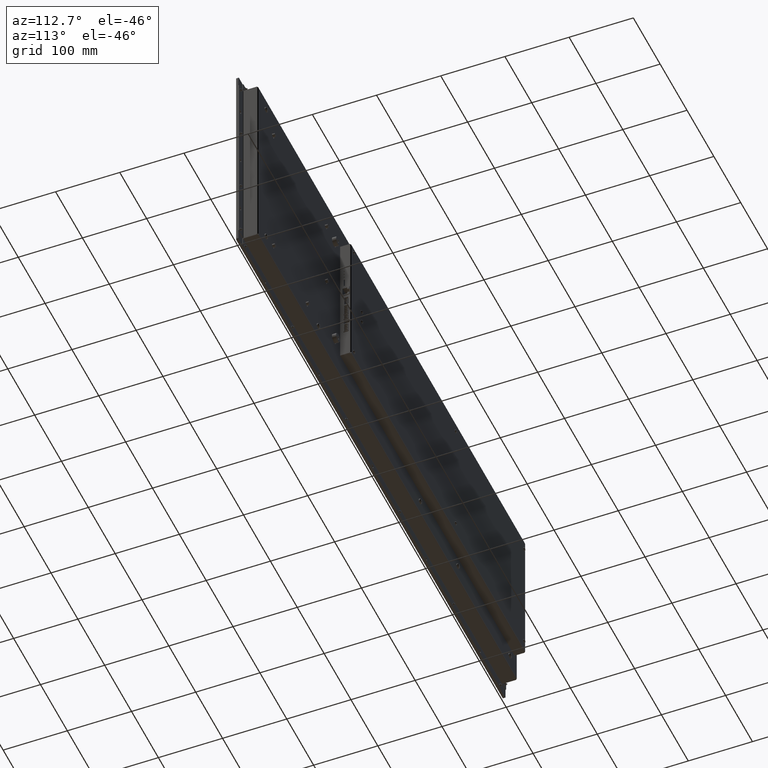
[diagram: clean part render]
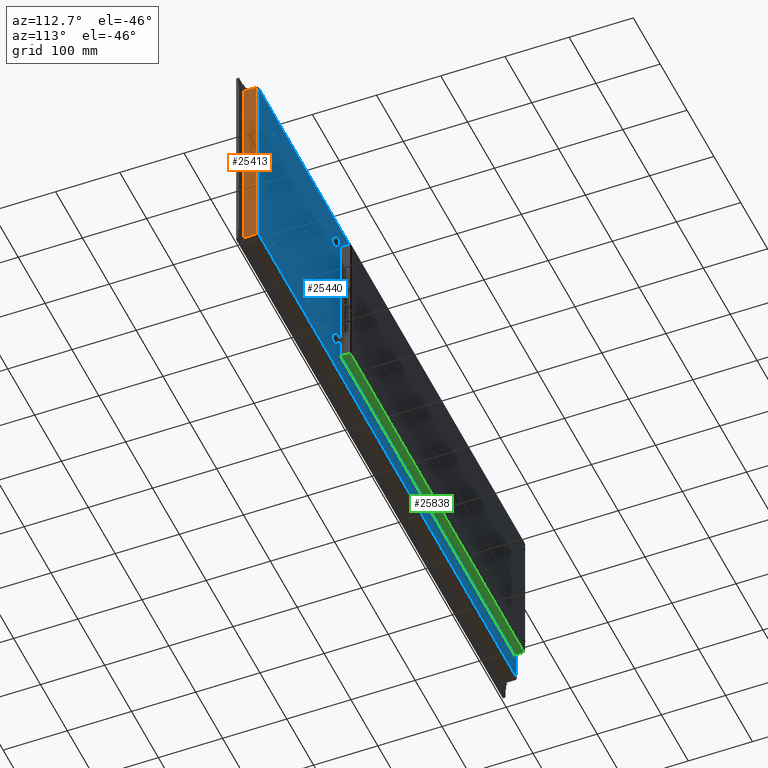
[diagram: same view with three faces highlighted in distinct colors, each labeled with its STEP entity id]
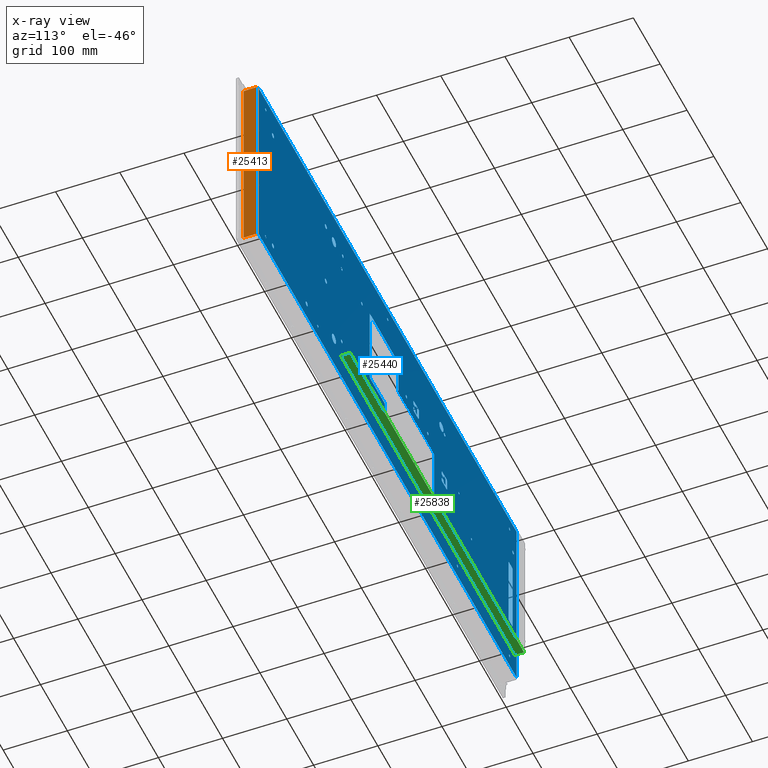
[diagram: x-ray of the same camera — body ghosted, the three highlighted faces saturated]
A machine part, auxiliary view with three faces highlighted in distinct colors.
The next image is the same camera in x-ray (body ghosted, the three faces saturated) — at least one of them is partly hidden behind the body in this view.
Their STEP definitions:

[orange] entity #25413 — the highlighted planar face has unit normal (1, -0, 0).
#3677=FACE_OUTER_BOUND('',#5172,.T.);
#5172=EDGE_LOOP('',(#18196,#18197,#18198,#18199));
#7043=LINE('',#37731,#9256);
#7050=LINE('',#37754,#9263);
#7053=LINE('',#37760,#9266);
#7054=LINE('',#37761,#9267);
#9256=VECTOR('',#30619,10.);
#9263=VECTOR('',#30648,10.);
#9266=VECTOR('',#30653,10.);
#9267=VECTOR('',#30654,10.);
#11576=VERTEX_POINT('',#37722);
#11577=VERTEX_POINT('',#37726);
#11582=VERTEX_POINT('',#37753);
#11584=VERTEX_POINT('',#37759);
#14152=EDGE_CURVE('',#11576,#11577,#7043,.T.);
#14163=EDGE_CURVE('',#11576,#11582,#7050,.T.);
#14166=EDGE_CURVE('',#11577,#11584,#7053,.T.);
#14167=EDGE_CURVE('',#11584,#11582,#7054,.T.);
#18196=ORIENTED_EDGE('',*,*,#14152,.T.);
#18197=ORIENTED_EDGE('',*,*,#14166,.T.);
#18198=ORIENTED_EDGE('',*,*,#14167,.T.);
#18199=ORIENTED_EDGE('',*,*,#14163,.F.);
#24574=PLANE('',#27460);
#25413=ADVANCED_FACE('',(#3677),#24574,.T.);
#27460=AXIS2_PLACEMENT_3D('',#37758,#30651,#30652);
#30619=DIRECTION('',(3.99312685147812E-18,-1.,-1.77330454830396E-32));
#30648=DIRECTION('',(3.15796771448933E-15,8.68441121484567E-15,1.));
#30651=DIRECTION('center_axis',(-1.,-3.99312685147812E-18,4.1851264362802E-15));
#30652=DIRECTION('ref_axis',(4.1851264362802E-15,0.,1.));
#30653=DIRECTION('',(3.15796771448933E-15,-8.68441121484567E-15,1.));
#30654=DIRECTION('',(-3.99312685147812E-18,1.,2.15241630805105E-32));
#37722=CARTESIAN_POINT('',(-482.52,151.65,-22.4999999999999));
#37726=CARTESIAN_POINT('',(-482.52,-151.65,-22.4999999999999));
#37731=CARTESIAN_POINT('',(-482.52,-75.8250000000001,-22.4999999999999));
#37753=CARTESIAN_POINT('',(-482.52,151.65,-1.99999999999992));
#37754=CARTESIAN_POINT('',(-482.52,151.65,-1.99999999999995));
#37758=CARTESIAN_POINT('Origin',(-482.52,-1.17683640610267E-13,-12.1190266447076));
#37759=CARTESIAN_POINT('',(-482.52,-151.65,-1.99999999999992));
#37760=CARTESIAN_POINT('',(-482.52,-151.65,-1.99999999999995));
#37761=CARTESIAN_POINT('',(-482.52,-1.29897211956662E-13,-1.99999999999996));

[blue] entity #25440 — the highlighted planar face has unit normal (0, 1, -0).
#2062=FACE_BOUND('',#5200,.T.);
#2063=FACE_BOUND('',#5201,.T.);
#2064=FACE_BOUND('',#5202,.T.);
#2065=FACE_BOUND('',#5203,.T.);
#2066=FACE_BOUND('',#5204,.T.);
#2067=FACE_BOUND('',#5205,.T.);
#2068=FACE_BOUND('',#5206,.T.);
#2069=FACE_BOUND('',#5207,.T.);
#2070=FACE_BOUND('',#5208,.T.);
#2071=FACE_BOUND('',#5209,.T.);
#2072=FACE_BOUND('',#5210,.T.);
#2073=FACE_BOUND('',#5211,.T.);
#2074=FACE_BOUND('',#5212,.T.);
#2075=FACE_BOUND('',#5213,.T.);
#2076=FACE_BOUND('',#5214,.T.);
#2077=FACE_BOUND('',#5215,.T.);
#2078=FACE_BOUND('',#5216,.T.);
#2079=FACE_BOUND('',#5217,.T.);
#2080=FACE_BOUND('',#5218,.T.);
#2081=FACE_BOUND('',#5219,.T.);
#2082=FACE_BOUND('',#5220,.T.);
#2083=FACE_BOUND('',#5221,.T.);
#2084=FACE_BOUND('',#5222,.T.);
#2085=FACE_BOUND('',#5223,.T.);
#2086=FACE_BOUND('',#5224,.T.);
#2087=FACE_BOUND('',#5225,.T.);
#2088=FACE_BOUND('',#5226,.T.);
#2089=FACE_BOUND('',#5227,.T.);
#2090=FACE_BOUND('',#5228,.T.);
#2091=FACE_BOUND('',#5229,.T.);
#2092=FACE_BOUND('',#5230,.T.);
#2093=FACE_BOUND('',#5231,.T.);
#2094=FACE_BOUND('',#5232,.T.);
#2095=FACE_BOUND('',#5233,.T.);
#2096=FACE_BOUND('',#5234,.T.);
#2097=FACE_BOUND('',#5235,.T.);
#2509=CIRCLE('',#27109,1.5);
#2510=CIRCLE('',#27112,2.00000000000002);
#2511=CIRCLE('',#27115,2.00000000000002);
#2512=CIRCLE('',#27118,2.);
#2513=CIRCLE('',#27121,2.00000000000001);
#2514=CIRCLE('',#27124,1.5);
#2515=CIRCLE('',#27127,0.500000000003125);
#2516=CIRCLE('',#27130,1.4999999999968);
#2517=CIRCLE('',#27133,1.4999999999968);
#2518=CIRCLE('',#27136,1.4999999999968);
#2519=CIRCLE('',#27139,1.4999999999968);
#2520=CIRCLE('',#27142,0.500000000003125);
#2521=CIRCLE('',#27145,1.5);
#2522=CIRCLE('',#27148,2.00000000000002);
#2523=CIRCLE('',#27151,2.00000000000002);
#2524=CIRCLE('',#27154,2.);
#2525=CIRCLE('',#27157,2.00000000000001);
#2526=CIRCLE('',#27160,1.5);
#2527=CIRCLE('',#27163,0.500000000003125);
#2528=CIRCLE('',#27166,1.4999999999968);
#2529=CIRCLE('',#27169,1.4999999999968);
#2530=CIRCLE('',#27172,1.4999999999968);
#2531=CIRCLE('',#27175,1.4999999999968);
#2532=CIRCLE('',#27178,0.500000000003125);
#2533=CIRCLE('',#27181,1.5);
#2534=CIRCLE('',#27184,2.00000000000002);
#2535=CIRCLE('',#27187,2.00000000000002);
#2536=CIRCLE('',#27190,2.);
#2537=CIRCLE('',#27193,2.00000000000001);
#2538=CIRCLE('',#27196,1.5);
#2539=CIRCLE('',#27199,0.500000000003125);
#2540=CIRCLE('',#27202,1.4999999999968);
#2541=CIRCLE('',#27205,1.4999999999968);
#2542=CIRCLE('',#27208,1.4999999999968);
#2543=CIRCLE('',#27211,1.4999999999968);
#2544=CIRCLE('',#27214,0.500000000003125);
#2545=CIRCLE('',#27216,2.705);
#2546=CIRCLE('',#27217,2.705);
#2547=CIRCLE('',#27219,2.705);
#2548=CIRCLE('',#27220,2.705);
#2549=CIRCLE('',#27222,2.705);
#2550=CIRCLE('',#27223,2.705);
#2551=CIRCLE('',#27225,2.705);
#2552=CIRCLE('',#27226,2.705);
#2553=CIRCLE('',#27228,2.705);
#2554=CIRCLE('',#27229,2.705);
#2555=CIRCLE('',#27231,2.705);
#2556=CIRCLE('',#27232,2.705);
#2697=CIRCLE('',#27476,2.);
#2698=CIRCLE('',#27477,2.);
#2699=CIRCLE('',#27478,2.);
#2700=CIRCLE('',#27479,2.);
#2701=CIRCLE('',#27480,2.);
#2702=CIRCLE('',#27481,2.);
#2703=CIRCLE('',#27482,2.);
#2704=CIRCLE('',#27483,1.6);
#2705=CIRCLE('',#27484,1.6);
#2706=CIRCLE('',#27485,2.1);
#2707=CIRCLE('',#27486,2.1);
#2708=CIRCLE('',#27487,2.1);
#2709=CIRCLE('',#27488,2.1);
#2710=CIRCLE('',#27489,2.1);
#2711=CIRCLE('',#27490,2.1);
#2712=CIRCLE('',#27491,2.1);
#2713=CIRCLE('',#27492,2.1);
#2714=CIRCLE('',#27493,2.5);
#2715=CIRCLE('',#27494,2.5);
#2716=CIRCLE('',#27495,2.705);
#2717=CIRCLE('',#27496,2.705);
#2718=CIRCLE('',#27497,2.705);
#2719=CIRCLE('',#27498,2.705);
#2720=CIRCLE('',#27499,3.75);
#2721=CIRCLE('',#27500,3.75);
#2722=CIRCLE('',#27501,3.75);
#2723=CIRCLE('',#27502,3.75);
#2724=CIRCLE('',#27503,3.75);
#2725=CIRCLE('',#27504,7.5);
#2726=CIRCLE('',#27505,7.5);
#2727=CIRCLE('',#27506,7.5);
#2728=CIRCLE('',#27507,7.5);
#2729=CIRCLE('',#27508,2.);
#2730=CIRCLE('',#27509,2.);
#2731=CIRCLE('',#27510,2.);
#2732=CIRCLE('',#27511,2.);
#3704=FACE_OUTER_BOUND('',#5199,.T.);
#5199=EDGE_LOOP('',(#18304,#18305,#18306,#18307));
#5200=EDGE_LOOP('',(#18308,#18309,#18310,#18311,#18312,#18313,#18314,#18315,
#18316,#18317,#18318,#18319,#18320,#18321,#18322));
#5201=EDGE_LOOP('',(#18323,#18324,#18325,#18326,#18327,#18328,#18329,#18330,
#18331,#18332,#18333,#18334,#18335,#18336,#18337,#18338,#18339,#18340,#18341,
#18342,#18343,#18344,#18345,#18346));
#5202=EDGE_LOOP('',(#18347,#18348,#18349,#18350,#18351,#18352,#18353,#18354,
#18355,#18356,#18357,#18358,#18359,#18360,#18361,#18362,#18363,#18364,#18365,
#18366,#18367,#18368,#18369,#18370));
#5203=EDGE_LOOP('',(#18371,#18372,#18373,#18374,#18375,#18376,#18377,#18378,
#18379,#18380,#18381,#18382,#18383,#18384,#18385,#18386,#18387,#18388,#18389,
#18390,#18391,#18392,#18393,#18394));
#5204=EDGE_LOOP('',(#18395,#18396));
#5205=EDGE_LOOP('',(#18397,#18398));
#5206=EDGE_LOOP('',(#18399,#18400));
#5207=EDGE_LOOP('',(#18401,#18402));
#5208=EDGE_LOOP('',(#18403,#18404));
#5209=EDGE_LOOP('',(#18405,#18406));
#5210=EDGE_LOOP('',(#18407));
#5211=EDGE_LOOP('',(#18408));
#5212=EDGE_LOOP('',(#18409));
#5213=EDGE_LOOP('',(#18410));
#5214=EDGE_LOOP('',(#18411));
#5215=EDGE_LOOP('',(#18412));
#5216=EDGE_LOOP('',(#18413));
#5217=EDGE_LOOP('',(#18414));
#5218=EDGE_LOOP('',(#18415));
#5219=EDGE_LOOP('',(#18416));
#5220=EDGE_LOOP('',(#18417));
#5221=EDGE_LOOP('',(#18418));
#5222=EDGE_LOOP('',(#18419));
#5223=EDGE_LOOP('',(#18420));
#5224=EDGE_LOOP('',(#18421));
#5225=EDGE_LOOP('',(#18422));
#5226=EDGE_LOOP('',(#18423));
#5227=EDGE_LOOP('',(#18424));
#5228=EDGE_LOOP('',(#18425));
#5229=EDGE_LOOP('',(#18426));
#5230=EDGE_LOOP('',(#18427));
#5231=EDGE_LOOP('',(#18428));
#5232=EDGE_LOOP('',(#18429));
#5233=EDGE_LOOP('',(#18430));
#5234=EDGE_LOOP('',(#18431));
#5235=EDGE_LOOP('',(#18432,#18433,#18434,#18435,#18436,#18437,#18438,#18439));
#6814=LINE('',#36903,#9027);
#6818=LINE('',#36912,#9031);
#6821=LINE('',#36920,#9034);
#6824=LINE('',#36928,#9037);
#6827=LINE('',#36936,#9040);
#6830=LINE('',#36944,#9043);
#6833=LINE('',#36952,#9046);
#6836=LINE('',#36960,#9049);
#6839=LINE('',#36968,#9052);
#6842=LINE('',#36976,#9055);
#6845=LINE('',#36984,#9058);
#6848=LINE('',#36992,#9061);
#6850=LINE('',#36999,#9063);
#6854=LINE('',#37008,#9067);
#6857=LINE('',#37016,#9070);
#6860=LINE('',#37024,#9073);
#6863=LINE('',#37032,#9076);
#6866=LINE('',#37040,#9079);
#6869=LINE('',#37048,#9082);
#6872=LINE('',#37056,#9085);
#6875=LINE('',#37064,#9088);
#6878=LINE('',#37072,#9091);
#6881=LINE('',#37080,#9094);
#6884=LINE('',#37088,#9097);
#6886=LINE('',#37095,#9099);
#6890=LINE('',#37104,#9103);
#6893=LINE('',#37112,#9106);
#6896=LINE('',#37120,#9109);
#6899=LINE('',#37128,#9112);
#6902=LINE('',#37136,#9115);
#6905=LINE('',#37144,#9118);
#6908=LINE('',#37152,#9121);
#6911=LINE('',#37160,#9124);
#6914=LINE('',#37168,#9127);
#6917=LINE('',#37176,#9130);
#6920=LINE('',#37184,#9133);
#7064=LINE('',#37797,#9277);
#7067=LINE('',#38017,#9280);
#7074=LINE('',#38331,#9287);
#7075=LINE('',#38333,#9288);
#7076=LINE('',#38337,#9289);
#7077=LINE('',#38341,#9290);
#7078=LINE('',#38343,#9291);
#7079=LINE('',#38347,#9292);
#7080=LINE('',#38351,#9293);
#7081=LINE('',#38355,#9294);
#7082=LINE('',#38359,#9295);
#7083=LINE('',#38363,#9296);
#7084=LINE('',#38419,#9297);
#7085=LINE('',#38423,#9298);
#7086=LINE('',#38427,#9299);
#7087=LINE('',#38430,#9300);
#9027=VECTOR('',#29708,10.);
#9031=VECTOR('',#29718,10.);
#9034=VECTOR('',#29727,10.);
#9037=VECTOR('',#29736,10.);
#9040=VECTOR('',#29745,10.);
#9043=VECTOR('',#29754,10.);
#9046=VECTOR('',#29763,10.);
#9049=VECTOR('',#29772,10.);
#9052=VECTOR('',#29781,10.);
#9055=VECTOR('',#29790,10.);
#9058=VECTOR('',#29799,10.);
#9061=VECTOR('',#29808,10.);
#9063=VECTOR('',#29816,10.);
#9067=VECTOR('',#29826,10.);
#9070=VECTOR('',#29835,10.);
#9073=VECTOR('',#29844,10.);
#9076=VECTOR('',#29853,10.);
#9079=VECTOR('',#29862,10.);
#9082=VECTOR('',#29871,10.);
#9085=VECTOR('',#29880,10.);
#9088=VECTOR('',#29889,10.);
#9091=VECTOR('',#29898,10.);
#9094=VECTOR('',#29907,10.);
#9097=VECTOR('',#29916,10.);
#9099=VECTOR('',#29924,10.);
#9103=VECTOR('',#29934,10.);
#9106=VECTOR('',#29943,10.);
#9109=VECTOR('',#29952,10.);
#9112=VECTOR('',#29961,10.);
#9115=VECTOR('',#29970,10.);
#9118=VECTOR('',#29979,10.);
#9121=VECTOR('',#29988,10.);
#9124=VECTOR('',#29997,10.);
#9127=VECTOR('',#30006,10.);
#9130=VECTOR('',#30015,10.);
#9133=VECTOR('',#30024,10.);
#9277=VECTOR('',#30674,10.);
#9280=VECTOR('',#30683,10.);
#9287=VECTOR('',#30700,10.);
#9288=VECTOR('',#30703,10.);
#9289=VECTOR('',#30706,10.);
#9290=VECTOR('',#30709,10.);
#9291=VECTOR('',#30710,10.);
#9292=VECTOR('',#30713,10.);
#9293=VECTOR('',#30716,10.);
#9294=VECTOR('',#30719,10.);
#9295=VECTOR('',#30722,10.);
#9296=VECTOR('',#30725,10.);
#9297=VECTOR('',#30780,10.);
#9298=VECTOR('',#30783,10.);
#9299=VECTOR('',#30786,10.);
#9300=VECTOR('',#30789,10.);
#11318=VERTEX_POINT('',#36901);
#11319=VERTEX_POINT('',#36902);
#11320=VERTEX_POINT('',#36907);
#11321=VERTEX_POINT('',#36911);
#11322=VERTEX_POINT('',#36915);
#11323=VERTEX_POINT('',#36919);
#11324=VERTEX_POINT('',#36923);
#11325=VERTEX_POINT('',#36927);
#11326=VERTEX_POINT('',#36931);
#11327=VERTEX_POINT('',#36935);
#11328=VERTEX_POINT('',#36939);
#11329=VERTEX_POINT('',#36943);
#11330=VERTEX_POINT('',#36947);
#11331=VERTEX_POINT('',#36951);
#11332=VERTEX_POINT('',#36955);
#11333=VERTEX_POINT('',#36959);
#11334=VERTEX_POINT('',#36963);
#11335=VERTEX_POINT('',#36967);
#11336=VERTEX_POINT('',#36971);
#11337=VERTEX_POINT('',#36975);
#11338=VERTEX_POINT('',#36979);
#11339=VERTEX_POINT('',#36983);
#11340=VERTEX_POINT('',#36987);
#11341=VERTEX_POINT('',#36991);
#11342=VERTEX_POINT('',#36997);
#11343=VERTEX_POINT('',#36998);
#11344=VERTEX_POINT('',#37003);
#11345=VERTEX_POINT('',#37007);
#11346=VERTEX_POINT('',#37011);
#11347=VERTEX_POINT('',#37015);
#11348=VERTEX_POINT('',#37019);
#11349=VERTEX_POINT('',#37023);
#11350=VERTEX_POINT('',#37027);
#11351=VERTEX_POINT('',#37031);
#11352=VERTEX_POINT('',#37035);
#11353=VERTEX_POINT('',#37039);
#11354=VERTEX_POINT('',#37043);
#11355=VERTEX_POINT('',#37047);
#11356=VERTEX_POINT('',#37051);
#11357=VERTEX_POINT('',#37055);
#11358=VERTEX_POINT('',#37059);
#11359=VERTEX_POINT('',#37063);
#11360=VERTEX_POINT('',#37067);
#11361=VERTEX_POINT('',#37071);
#11362=VERTEX_POINT('',#37075);
#11363=VERTEX_POINT('',#37079);
#11364=VERTEX_POINT('',#37083);
#11365=VERTEX_POINT('',#37087);
#11366=VERTEX_POINT('',#37093);
#11367=VERTEX_POINT('',#37094);
#11368=VERTEX_POINT('',#37099);
#11369=VERTEX_POINT('',#37103);
#11370=VERTEX_POINT('',#37107);
#11371=VERTEX_POINT('',#37111);
#11372=VERTEX_POINT('',#37115);
#11373=VERTEX_POINT('',#37119);
#11374=VERTEX_POINT('',#37123);
#11375=VERTEX_POINT('',#37127);
#11376=VERTEX_POINT('',#37131);
#11377=VERTEX_POINT('',#37135);
#11378=VERTEX_POINT('',#37139);
#11379=VERTEX_POINT('',#37143);
#11380=VERTEX_POINT('',#37147);
#11381=VERTEX_POINT('',#37151);
#11382=VERTEX_POINT('',#37155);
#11383=VERTEX_POINT('',#37159);
#11384=VERTEX_POINT('',#37163);
#11385=VERTEX_POINT('',#37167);
#11386=VERTEX_POINT('',#37171);
#11387=VERTEX_POINT('',#37175);
#11388=VERTEX_POINT('',#37179);
#11389=VERTEX_POINT('',#37183);
#11390=VERTEX_POINT('',#37189);
#11391=VERTEX_POINT('',#37190);
#11392=VERTEX_POINT('',#37195);
#11393=VERTEX_POINT('',#37196);
#11394=VERTEX_POINT('',#37201);
#11395=VERTEX_POINT('',#37202);
#11396=VERTEX_POINT('',#37207);
#11397=VERTEX_POINT('',#37208);
#11398=VERTEX_POINT('',#37213);
#11399=VERTEX_POINT('',#37214);
#11400=VERTEX_POINT('',#37219);
#11401=VERTEX_POINT('',#37220);
#11590=VERTEX_POINT('',#37781);
#11591=VERTEX_POINT('',#37789);
#11593=VERTEX_POINT('',#38008);
#11594=VERTEX_POINT('',#38016);
#11598=VERTEX_POINT('',#38335);
#11599=VERTEX_POINT('',#38336);
#11600=VERTEX_POINT('',#38338);
#11601=VERTEX_POINT('',#38340);
#11602=VERTEX_POINT('',#38342);
#11603=VERTEX_POINT('',#38344);
#11604=VERTEX_POINT('',#38346);
#11605=VERTEX_POINT('',#38348);
#11606=VERTEX_POINT('',#38350);
#11607=VERTEX_POINT('',#38352);
#11608=VERTEX_POINT('',#38354);
#11609=VERTEX_POINT('',#38356);
#11610=VERTEX_POINT('',#38358);
#11611=VERTEX_POINT('',#38360);
#11612=VERTEX_POINT('',#38362);
#11613=VERTEX_POINT('',#38365);
#11614=VERTEX_POINT('',#38367);
#11615=VERTEX_POINT('',#38369);
#11616=VERTEX_POINT('',#38371);
#11617=VERTEX_POINT('',#38373);
#11618=VERTEX_POINT('',#38375);
#11619=VERTEX_POINT('',#38377);
#11620=VERTEX_POINT('',#38379);
#11621=VERTEX_POINT('',#38381);
#11622=VERTEX_POINT('',#38383);
#11623=VERTEX_POINT('',#38385);
#11624=VERTEX_POINT('',#38387);
#11625=VERTEX_POINT('',#38389);
#11626=VERTEX_POINT('',#38391);
#11627=VERTEX_POINT('',#38393);
#11628=VERTEX_POINT('',#38395);
#11629=VERTEX_POINT('',#38397);
#11630=VERTEX_POINT('',#38399);
#11631=VERTEX_POINT('',#38401);
#11632=VERTEX_POINT('',#38403);
#11633=VERTEX_POINT('',#38405);
#11634=VERTEX_POINT('',#38407);
#11635=VERTEX_POINT('',#38409);
#11636=VERTEX_POINT('',#38411);
#11637=VERTEX_POINT('',#38413);
#11638=VERTEX_POINT('',#38415);
#11639=VERTEX_POINT('',#38416);
#11640=VERTEX_POINT('',#38418);
#11641=VERTEX_POINT('',#38420);
#11642=VERTEX_POINT('',#38422);
#11643=VERTEX_POINT('',#38424);
#11644=VERTEX_POINT('',#38426);
#11645=VERTEX_POINT('',#38428);
#13739=EDGE_CURVE('',#11318,#11319,#6814,.T.);
#13742=EDGE_CURVE('',#11320,#11318,#2509,.T.);
#13744=EDGE_CURVE('',#11321,#11320,#6818,.T.);
#13746=EDGE_CURVE('',#11322,#11321,#2510,.T.);
#13748=EDGE_CURVE('',#11323,#11322,#6821,.T.);
#13750=EDGE_CURVE('',#11324,#11323,#2511,.T.);
#13752=EDGE_CURVE('',#11325,#11324,#6824,.T.);
#13754=EDGE_CURVE('',#11326,#11325,#2512,.T.);
#13756=EDGE_CURVE('',#11327,#11326,#6827,.T.);
#13758=EDGE_CURVE('',#11328,#11327,#2513,.T.);
#13760=EDGE_CURVE('',#11329,#11328,#6830,.T.);
#13762=EDGE_CURVE('',#11330,#11329,#2514,.T.);
#13764=EDGE_CURVE('',#11331,#11330,#6833,.T.);
#13766=EDGE_CURVE('',#11332,#11331,#2515,.T.);
#13768=EDGE_CURVE('',#11333,#11332,#6836,.T.);
#13770=EDGE_CURVE('',#11334,#11333,#2516,.T.);
#13772=EDGE_CURVE('',#11335,#11334,#6839,.T.);
#13774=EDGE_CURVE('',#11336,#11335,#2517,.T.);
#13776=EDGE_CURVE('',#11337,#11336,#6842,.T.);
#13778=EDGE_CURVE('',#11338,#11337,#2518,.T.);
#13780=EDGE_CURVE('',#11339,#11338,#6845,.T.);
#13782=EDGE_CURVE('',#11340,#11339,#2519,.T.);
#13784=EDGE_CURVE('',#11341,#11340,#6848,.T.);
#13786=EDGE_CURVE('',#11319,#11341,#2520,.T.);
#13787=EDGE_CURVE('',#11342,#11343,#6850,.T.);
#13790=EDGE_CURVE('',#11344,#11342,#2521,.T.);
#13792=EDGE_CURVE('',#11345,#11344,#6854,.T.);
#13794=EDGE_CURVE('',#11346,#11345,#2522,.T.);
#13796=EDGE_CURVE('',#11347,#11346,#6857,.T.);
#13798=EDGE_CURVE('',#11348,#11347,#2523,.T.);
#13800=EDGE_CURVE('',#11349,#11348,#6860,.T.);
#13802=EDGE_CURVE('',#11350,#11349,#2524,.T.);
#13804=EDGE_CURVE('',#11351,#11350,#6863,.T.);
#13806=EDGE_CURVE('',#11352,#11351,#2525,.T.);
#13808=EDGE_CURVE('',#11353,#11352,#6866,.T.);
#13810=EDGE_CURVE('',#11354,#11353,#2526,.T.);
#13812=EDGE_CURVE('',#11355,#11354,#6869,.T.);
#13814=EDGE_CURVE('',#11356,#11355,#2527,.T.);
#13816=EDGE_CURVE('',#11357,#11356,#6872,.T.);
#13818=EDGE_CURVE('',#11358,#11357,#2528,.T.);
#13820=EDGE_CURVE('',#11359,#11358,#6875,.T.);
#13822=EDGE_CURVE('',#11360,#11359,#2529,.T.);
#13824=EDGE_CURVE('',#11361,#11360,#6878,.T.);
#13826=EDGE_CURVE('',#11362,#11361,#2530,.T.);
#13828=EDGE_CURVE('',#11363,#11362,#6881,.T.);
#13830=EDGE_CURVE('',#11364,#11363,#2531,.T.);
#13832=EDGE_CURVE('',#11365,#11364,#6884,.T.);
#13834=EDGE_CURVE('',#11343,#11365,#2532,.T.);
#13835=EDGE_CURVE('',#11366,#11367,#6886,.T.);
#13838=EDGE_CURVE('',#11368,#11366,#2533,.T.);
#13840=EDGE_CURVE('',#11369,#11368,#6890,.T.);
#13842=EDGE_CURVE('',#11370,#11369,#2534,.T.);
#13844=EDGE_CURVE('',#11371,#11370,#6893,.T.);
#13846=EDGE_CURVE('',#11372,#11371,#2535,.T.);
#13848=EDGE_CURVE('',#11373,#11372,#6896,.T.);
#13850=EDGE_CURVE('',#11374,#11373,#2536,.T.);
#13852=EDGE_CURVE('',#11375,#11374,#6899,.T.);
#13854=EDGE_CURVE('',#11376,#11375,#2537,.T.);
#13856=EDGE_CURVE('',#11377,#11376,#6902,.T.);
#13858=EDGE_CURVE('',#11378,#11377,#2538,.T.);
#13860=EDGE_CURVE('',#11379,#11378,#6905,.T.);
#13862=EDGE_CURVE('',#11380,#11379,#2539,.T.);
#13864=EDGE_CURVE('',#11381,#11380,#6908,.T.);
#13866=EDGE_CURVE('',#11382,#11381,#2540,.T.);
#13868=EDGE_CURVE('',#11383,#11382,#6911,.T.);
#13870=EDGE_CURVE('',#11384,#11383,#2541,.T.);
#13872=EDGE_CURVE('',#11385,#11384,#6914,.T.);
#13874=EDGE_CURVE('',#11386,#11385,#2542,.T.);
#13876=EDGE_CURVE('',#11387,#11386,#6917,.T.);
#13878=EDGE_CURVE('',#11388,#11387,#2543,.T.);
#13880=EDGE_CURVE('',#11389,#11388,#6920,.T.);
#13882=EDGE_CURVE('',#11367,#11389,#2544,.T.);
#13883=EDGE_CURVE('',#11390,#11391,#2545,.T.);
#13884=EDGE_CURVE('',#11391,#11390,#2546,.T.);
#13886=EDGE_CURVE('',#11392,#11393,#2547,.T.);
#13887=EDGE_CURVE('',#11393,#11392,#2548,.T.);
#13889=EDGE_CURVE('',#11394,#11395,#2549,.T.);
#13890=EDGE_CURVE('',#11395,#11394,#2550,.T.);
#13892=EDGE_CURVE('',#11396,#11397,#2551,.T.);
#13893=EDGE_CURVE('',#11397,#11396,#2552,.T.);
#13895=EDGE_CURVE('',#11398,#11399,#2553,.T.);
#13896=EDGE_CURVE('',#11399,#11398,#2554,.T.);
#13898=EDGE_CURVE('',#11400,#11401,#2555,.T.);
#13899=EDGE_CURVE('',#11401,#11400,#2556,.T.);
#14179=EDGE_CURVE('',#11590,#11591,#7064,.T.);
#14191=EDGE_CURVE('',#11594,#11593,#7067,.T.);
#14211=EDGE_CURVE('',#11591,#11594,#7074,.T.);
#14212=EDGE_CURVE('',#11593,#11590,#7075,.T.);
#14213=EDGE_CURVE('',#11598,#11599,#7076,.T.);
#14214=EDGE_CURVE('',#11599,#11600,#2697,.T.);
#14215=EDGE_CURVE('',#11600,#11601,#7077,.T.);
#14216=EDGE_CURVE('',#11601,#11602,#7078,.T.);
#14217=EDGE_CURVE('',#11602,#11603,#2698,.T.);
#14218=EDGE_CURVE('',#11603,#11604,#7079,.T.);
#14219=EDGE_CURVE('',#11604,#11605,#2699,.T.);
#14220=EDGE_CURVE('',#11605,#11606,#7080,.T.);
#14221=EDGE_CURVE('',#11606,#11607,#2700,.T.);
#14222=EDGE_CURVE('',#11607,#11608,#7081,.T.);
#14223=EDGE_CURVE('',#11608,#11609,#2701,.T.);
#14224=EDGE_CURVE('',#11609,#11610,#7082,.T.);
#14225=EDGE_CURVE('',#11610,#11611,#2702,.T.);
#14226=EDGE_CURVE('',#11611,#11612,#7083,.T.);
#14227=EDGE_CURVE('',#11612,#11598,#2703,.T.);
#14228=EDGE_CURVE('',#11613,#11613,#2704,.T.);
#14229=EDGE_CURVE('',#11614,#11614,#2705,.T.);
#14230=EDGE_CURVE('',#11615,#11615,#2706,.T.);
#14231=EDGE_CURVE('',#11616,#11616,#2707,.T.);
#14232=EDGE_CURVE('',#11617,#11617,#2708,.T.);
#14233=EDGE_CURVE('',#11618,#11618,#2709,.T.);
#14234=EDGE_CURVE('',#11619,#11619,#2710,.T.);
#14235=EDGE_CURVE('',#11620,#11620,#2711,.T.);
#14236=EDGE_CURVE('',#11621,#11621,#2712,.T.);
#14237=EDGE_CURVE('',#11622,#11622,#2713,.T.);
#14238=EDGE_CURVE('',#11623,#11623,#2714,.T.);
#14239=EDGE_CURVE('',#11624,#11624,#2715,.T.);
#14240=EDGE_CURVE('',#11625,#11625,#2716,.T.);
#14241=EDGE_CURVE('',#11626,#11626,#2717,.T.);
#14242=EDGE_CURVE('',#11627,#11627,#2718,.T.);
#14243=EDGE_CURVE('',#11628,#11628,#2719,.T.);
#14244=EDGE_CURVE('',#11629,#11629,#2720,.T.);
#14245=EDGE_CURVE('',#11630,#11630,#2721,.T.);
#14246=EDGE_CURVE('',#11631,#11631,#2722,.T.);
#14247=EDGE_CURVE('',#11632,#11632,#2723,.T.);
#14248=EDGE_CURVE('',#11633,#11633,#2724,.T.);
#14249=EDGE_CURVE('',#11634,#11634,#2725,.T.);
#14250=EDGE_CURVE('',#11635,#11635,#2726,.T.);
#14251=EDGE_CURVE('',#11636,#11636,#2727,.T.);
#14252=EDGE_CURVE('',#11637,#11637,#2728,.T.);
#14253=EDGE_CURVE('',#11638,#11639,#2729,.T.);
#14254=EDGE_CURVE('',#11639,#11640,#7084,.T.);
#14255=EDGE_CURVE('',#11640,#11641,#2730,.T.);
#14256=EDGE_CURVE('',#11641,#11642,#7085,.T.);
#14257=EDGE_CURVE('',#11642,#11643,#2731,.T.);
#14258=EDGE_CURVE('',#11643,#11644,#7086,.T.);
#14259=EDGE_CURVE('',#11644,#11645,#2732,.T.);
#14260=EDGE_CURVE('',#11645,#11638,#7087,.T.);
#18304=ORIENTED_EDGE('',*,*,#14211,.T.);
#18305=ORIENTED_EDGE('',*,*,#14191,.T.);
#18306=ORIENTED_EDGE('',*,*,#14212,.T.);
#18307=ORIENTED_EDGE('',*,*,#14179,.T.);
#18308=ORIENTED_EDGE('',*,*,#14213,.T.);
#18309=ORIENTED_EDGE('',*,*,#14214,.T.);
#18310=ORIENTED_EDGE('',*,*,#14215,.T.);
#18311=ORIENTED_EDGE('',*,*,#14216,.T.);
#18312=ORIENTED_EDGE('',*,*,#14217,.T.);
#18313=ORIENTED_EDGE('',*,*,#14218,.T.);
#18314=ORIENTED_EDGE('',*,*,#14219,.T.);
#18315=ORIENTED_EDGE('',*,*,#14220,.T.);
#18316=ORIENTED_EDGE('',*,*,#14221,.T.);
#18317=ORIENTED_EDGE('',*,*,#14222,.T.);
#18318=ORIENTED_EDGE('',*,*,#14223,.T.);
#18319=ORIENTED_EDGE('',*,*,#14224,.T.);
#18320=ORIENTED_EDGE('',*,*,#14225,.T.);
#18321=ORIENTED_EDGE('',*,*,#14226,.T.);
#18322=ORIENTED_EDGE('',*,*,#14227,.T.);
#18323=ORIENTED_EDGE('',*,*,#13739,.T.);
#18324=ORIENTED_EDGE('',*,*,#13786,.T.);
#18325=ORIENTED_EDGE('',*,*,#13784,.T.);
#18326=ORIENTED_EDGE('',*,*,#13782,.T.);
#18327=ORIENTED_EDGE('',*,*,#13780,.T.);
#18328=ORIENTED_EDGE('',*,*,#13778,.T.);
#18329=ORIENTED_EDGE('',*,*,#13776,.T.);
#18330=ORIENTED_EDGE('',*,*,#13774,.T.);
#18331=ORIENTED_EDGE('',*,*,#13772,.T.);
#18332=ORIENTED_EDGE('',*,*,#13770,.T.);
#18333=ORIENTED_EDGE('',*,*,#13768,.T.);
#18334=ORIENTED_EDGE('',*,*,#13766,.T.);
#18335=ORIENTED_EDGE('',*,*,#13764,.T.);
#18336=ORIENTED_EDGE('',*,*,#13762,.T.);
#18337=ORIENTED_EDGE('',*,*,#13760,.T.);
#18338=ORIENTED_EDGE('',*,*,#13758,.T.);
#18339=ORIENTED_EDGE('',*,*,#13756,.T.);
#18340=ORIENTED_EDGE('',*,*,#13754,.T.);
#18341=ORIENTED_EDGE('',*,*,#13752,.T.);
#18342=ORIENTED_EDGE('',*,*,#13750,.T.);
#18343=ORIENTED_EDGE('',*,*,#13748,.T.);
#18344=ORIENTED_EDGE('',*,*,#13746,.T.);
#18345=ORIENTED_EDGE('',*,*,#13744,.T.);
#18346=ORIENTED_EDGE('',*,*,#13742,.T.);
#18347=ORIENTED_EDGE('',*,*,#13787,.T.);
#18348=ORIENTED_EDGE('',*,*,#13834,.T.);
#18349=ORIENTED_EDGE('',*,*,#13832,.T.);
#18350=ORIENTED_EDGE('',*,*,#13830,.T.);
#18351=ORIENTED_EDGE('',*,*,#13828,.T.);
#18352=ORIENTED_EDGE('',*,*,#13826,.T.);
#18353=ORIENTED_EDGE('',*,*,#13824,.T.);
#18354=ORIENTED_EDGE('',*,*,#13822,.T.);
#18355=ORIENTED_EDGE('',*,*,#13820,.T.);
#18356=ORIENTED_EDGE('',*,*,#13818,.T.);
#18357=ORIENTED_EDGE('',*,*,#13816,.T.);
#18358=ORIENTED_EDGE('',*,*,#13814,.T.);
#18359=ORIENTED_EDGE('',*,*,#13812,.T.);
#18360=ORIENTED_EDGE('',*,*,#13810,.T.);
#18361=ORIENTED_EDGE('',*,*,#13808,.T.);
#18362=ORIENTED_EDGE('',*,*,#13806,.T.);
#18363=ORIENTED_EDGE('',*,*,#13804,.T.);
#18364=ORIENTED_EDGE('',*,*,#13802,.T.);
#18365=ORIENTED_EDGE('',*,*,#13800,.T.);
#18366=ORIENTED_EDGE('',*,*,#13798,.T.);
#18367=ORIENTED_EDGE('',*,*,#13796,.T.);
#18368=ORIENTED_EDGE('',*,*,#13794,.T.);
#18369=ORIENTED_EDGE('',*,*,#13792,.T.);
#18370=ORIENTED_EDGE('',*,*,#13790,.T.);
#18371=ORIENTED_EDGE('',*,*,#13835,.T.);
#18372=ORIENTED_EDGE('',*,*,#13882,.T.);
#18373=ORIENTED_EDGE('',*,*,#13880,.T.);
#18374=ORIENTED_EDGE('',*,*,#13878,.T.);
#18375=ORIENTED_EDGE('',*,*,#13876,.T.);
#18376=ORIENTED_EDGE('',*,*,#13874,.T.);
#18377=ORIENTED_EDGE('',*,*,#13872,.T.);
#18378=ORIENTED_EDGE('',*,*,#13870,.T.);
#18379=ORIENTED_EDGE('',*,*,#13868,.T.);
#18380=ORIENTED_EDGE('',*,*,#13866,.T.);
#18381=ORIENTED_EDGE('',*,*,#13864,.T.);
#18382=ORIENTED_EDGE('',*,*,#13862,.T.);
#18383=ORIENTED_EDGE('',*,*,#13860,.T.);
#18384=ORIENTED_EDGE('',*,*,#13858,.T.);
#18385=ORIENTED_EDGE('',*,*,#13856,.T.);
#18386=ORIENTED_EDGE('',*,*,#13854,.T.);
#18387=ORIENTED_EDGE('',*,*,#13852,.T.);
#18388=ORIENTED_EDGE('',*,*,#13850,.T.);
#18389=ORIENTED_EDGE('',*,*,#13848,.T.);
#18390=ORIENTED_EDGE('',*,*,#13846,.T.);
#18391=ORIENTED_EDGE('',*,*,#13844,.T.);
#18392=ORIENTED_EDGE('',*,*,#13842,.T.);
#18393=ORIENTED_EDGE('',*,*,#13840,.T.);
#18394=ORIENTED_EDGE('',*,*,#13838,.T.);
#18395=ORIENTED_EDGE('',*,*,#13883,.T.);
#18396=ORIENTED_EDGE('',*,*,#13884,.T.);
#18397=ORIENTED_EDGE('',*,*,#13886,.T.);
#18398=ORIENTED_EDGE('',*,*,#13887,.T.);
#18399=ORIENTED_EDGE('',*,*,#13889,.T.);
#18400=ORIENTED_EDGE('',*,*,#13890,.T.);
#18401=ORIENTED_EDGE('',*,*,#13892,.T.);
#18402=ORIENTED_EDGE('',*,*,#13893,.T.);
#18403=ORIENTED_EDGE('',*,*,#13895,.T.);
#18404=ORIENTED_EDGE('',*,*,#13896,.T.);
#18405=ORIENTED_EDGE('',*,*,#13898,.T.);
#18406=ORIENTED_EDGE('',*,*,#13899,.T.);
#18407=ORIENTED_EDGE('',*,*,#14228,.T.);
#18408=ORIENTED_EDGE('',*,*,#14229,.T.);
#18409=ORIENTED_EDGE('',*,*,#14230,.T.);
#18410=ORIENTED_EDGE('',*,*,#14231,.T.);
#18411=ORIENTED_EDGE('',*,*,#14232,.T.);
#18412=ORIENTED_EDGE('',*,*,#14233,.T.);
#18413=ORIENTED_EDGE('',*,*,#14234,.T.);
#18414=ORIENTED_EDGE('',*,*,#14235,.T.);
#18415=ORIENTED_EDGE('',*,*,#14236,.T.);
#18416=ORIENTED_EDGE('',*,*,#14237,.T.);
#18417=ORIENTED_EDGE('',*,*,#14238,.T.);
#18418=ORIENTED_EDGE('',*,*,#14239,.T.);
#18419=ORIENTED_EDGE('',*,*,#14240,.T.);
#18420=ORIENTED_EDGE('',*,*,#14241,.T.);
#18421=ORIENTED_EDGE('',*,*,#14242,.T.);
#18422=ORIENTED_EDGE('',*,*,#14243,.T.);
#18423=ORIENTED_EDGE('',*,*,#14244,.T.);
#18424=ORIENTED_EDGE('',*,*,#14245,.T.);
#18425=ORIENTED_EDGE('',*,*,#14246,.T.);
#18426=ORIENTED_EDGE('',*,*,#14247,.T.);
#18427=ORIENTED_EDGE('',*,*,#14248,.T.);
#18428=ORIENTED_EDGE('',*,*,#14249,.T.);
#18429=ORIENTED_EDGE('',*,*,#14250,.T.);
#18430=ORIENTED_EDGE('',*,*,#14251,.T.);
#18431=ORIENTED_EDGE('',*,*,#14252,.T.);
#18432=ORIENTED_EDGE('',*,*,#14253,.T.);
#18433=ORIENTED_EDGE('',*,*,#14254,.T.);
#18434=ORIENTED_EDGE('',*,*,#14255,.T.);
#18435=ORIENTED_EDGE('',*,*,#14256,.T.);
#18436=ORIENTED_EDGE('',*,*,#14257,.T.);
#18437=ORIENTED_EDGE('',*,*,#14258,.T.);
#18438=ORIENTED_EDGE('',*,*,#14259,.T.);
#18439=ORIENTED_EDGE('',*,*,#14260,.T.);
#24581=PLANE('',#27475);
#25440=ADVANCED_FACE('',(#3704,#2062,#2063,#2064,#2065,#2066,#2067,#2068,
#2069,#2070,#2071,#2072,#2073,#2074,#2075,#2076,#2077,#2078,#2079,#2080,
#2081,#2082,#2083,#2084,#2085,#2086,#2087,#2088,#2089,#2090,#2091,#2092,
#2093,#2094,#2095,#2096,#2097),#24581,.T.);
#27109=AXIS2_PLACEMENT_3D('',#36908,#29713,#29714);
#27112=AXIS2_PLACEMENT_3D('',#36916,#29722,#29723);
#27115=AXIS2_PLACEMENT_3D('',#36924,#29731,#29732);
#27118=AXIS2_PLACEMENT_3D('',#36932,#29740,#29741);
#27121=AXIS2_PLACEMENT_3D('',#36940,#29749,#29750);
#27124=AXIS2_PLACEMENT_3D('',#36948,#29758,#29759);
#27127=AXIS2_PLACEMENT_3D('',#36956,#29767,#29768);
#27130=AXIS2_PLACEMENT_3D('',#36964,#29776,#29777);
#27133=AXIS2_PLACEMENT_3D('',#36972,#29785,#29786);
#27136=AXIS2_PLACEMENT_3D('',#36980,#29794,#29795);
#27139=AXIS2_PLACEMENT_3D('',#36988,#29803,#29804);
#27142=AXIS2_PLACEMENT_3D('',#36995,#29812,#29813);
#27145=AXIS2_PLACEMENT_3D('',#37004,#29821,#29822);
#27148=AXIS2_PLACEMENT_3D('',#37012,#29830,#29831);
#27151=AXIS2_PLACEMENT_3D('',#37020,#29839,#29840);
#27154=AXIS2_PLACEMENT_3D('',#37028,#29848,#29849);
#27157=AXIS2_PLACEMENT_3D('',#37036,#29857,#29858);
#27160=AXIS2_PLACEMENT_3D('',#37044,#29866,#29867);
#27163=AXIS2_PLACEMENT_3D('',#37052,#29875,#29876);
#27166=AXIS2_PLACEMENT_3D('',#37060,#29884,#29885);
#27169=AXIS2_PLACEMENT_3D('',#37068,#29893,#29894);
#27172=AXIS2_PLACEMENT_3D('',#37076,#29902,#29903);
#27175=AXIS2_PLACEMENT_3D('',#37084,#29911,#29912);
#27178=AXIS2_PLACEMENT_3D('',#37091,#29920,#29921);
#27181=AXIS2_PLACEMENT_3D('',#37100,#29929,#29930);
#27184=AXIS2_PLACEMENT_3D('',#37108,#29938,#29939);
#27187=AXIS2_PLACEMENT_3D('',#37116,#29947,#29948);
#27190=AXIS2_PLACEMENT_3D('',#37124,#29956,#29957);
#27193=AXIS2_PLACEMENT_3D('',#37132,#29965,#29966);
#27196=AXIS2_PLACEMENT_3D('',#37140,#29974,#29975);
#27199=AXIS2_PLACEMENT_3D('',#37148,#29983,#29984);
#27202=AXIS2_PLACEMENT_3D('',#37156,#29992,#29993);
#27205=AXIS2_PLACEMENT_3D('',#37164,#30001,#30002);
#27208=AXIS2_PLACEMENT_3D('',#37172,#30010,#30011);
#27211=AXIS2_PLACEMENT_3D('',#37180,#30019,#30020);
#27214=AXIS2_PLACEMENT_3D('',#37187,#30028,#30029);
#27216=AXIS2_PLACEMENT_3D('',#37191,#30032,#30033);
#27217=AXIS2_PLACEMENT_3D('',#37192,#30034,#30035);
#27219=AXIS2_PLACEMENT_3D('',#37197,#30039,#30040);
#27220=AXIS2_PLACEMENT_3D('',#37198,#30041,#30042);
#27222=AXIS2_PLACEMENT_3D('',#37203,#30046,#30047);
#27223=AXIS2_PLACEMENT_3D('',#37204,#30048,#30049);
#27225=AXIS2_PLACEMENT_3D('',#37209,#30053,#30054);
#27226=AXIS2_PLACEMENT_3D('',#37210,#30055,#30056);
#27228=AXIS2_PLACEMENT_3D('',#37215,#30060,#30061);
#27229=AXIS2_PLACEMENT_3D('',#37216,#30062,#30063);
#27231=AXIS2_PLACEMENT_3D('',#37221,#30067,#30068);
#27232=AXIS2_PLACEMENT_3D('',#37222,#30069,#30070);
#27475=AXIS2_PLACEMENT_3D('',#38334,#30704,#30705);
#27476=AXIS2_PLACEMENT_3D('',#38339,#30707,#30708);
#27477=AXIS2_PLACEMENT_3D('',#38345,#30711,#30712);
#27478=AXIS2_PLACEMENT_3D('',#38349,#30714,#30715);
#27479=AXIS2_PLACEMENT_3D('',#38353,#30717,#30718);
#27480=AXIS2_PLACEMENT_3D('',#38357,#30720,#30721);
#27481=AXIS2_PLACEMENT_3D('',#38361,#30723,#30724);
#27482=AXIS2_PLACEMENT_3D('',#38364,#30726,#30727);
#27483=AXIS2_PLACEMENT_3D('',#38366,#30728,#30729);
#27484=AXIS2_PLACEMENT_3D('',#38368,#30730,#30731);
#27485=AXIS2_PLACEMENT_3D('',#38370,#30732,#30733);
#27486=AXIS2_PLACEMENT_3D('',#38372,#30734,#30735);
#27487=AXIS2_PLACEMENT_3D('',#38374,#30736,#30737);
#27488=AXIS2_PLACEMENT_3D('',#38376,#30738,#30739);
#27489=AXIS2_PLACEMENT_3D('',#38378,#30740,#30741);
#27490=AXIS2_PLACEMENT_3D('',#38380,#30742,#30743);
#27491=AXIS2_PLACEMENT_3D('',#38382,#30744,#30745);
#27492=AXIS2_PLACEMENT_3D('',#38384,#30746,#30747);
#27493=AXIS2_PLACEMENT_3D('',#38386,#30748,#30749);
#27494=AXIS2_PLACEMENT_3D('',#38388,#30750,#30751);
#27495=AXIS2_PLACEMENT_3D('',#38390,#30752,#30753);
#27496=AXIS2_PLACEMENT_3D('',#38392,#30754,#30755);
#27497=AXIS2_PLACEMENT_3D('',#38394,#30756,#30757);
#27498=AXIS2_PLACEMENT_3D('',#38396,#30758,#30759);
#27499=AXIS2_PLACEMENT_3D('',#38398,#30760,#30761);
#27500=AXIS2_PLACEMENT_3D('',#38400,#30762,#30763);
#27501=AXIS2_PLACEMENT_3D('',#38402,#30764,#30765);
#27502=AXIS2_PLACEMENT_3D('',#38404,#30766,#30767);
#27503=AXIS2_PLACEMENT_3D('',#38406,#30768,#30769);
#27504=AXIS2_PLACEMENT_3D('',#38408,#30770,#30771);
#27505=AXIS2_PLACEMENT_3D('',#38410,#30772,#30773);
#27506=AXIS2_PLACEMENT_3D('',#38412,#30774,#30775);
#27507=AXIS2_PLACEMENT_3D('',#38414,#30776,#30777);
#27508=AXIS2_PLACEMENT_3D('',#38417,#30778,#30779);
#27509=AXIS2_PLACEMENT_3D('',#38421,#30781,#30782);
#27510=AXIS2_PLACEMENT_3D('',#38425,#30784,#30785);
#27511=AXIS2_PLACEMENT_3D('',#38429,#30787,#30788);
#29708=DIRECTION('',(1.,2.22044604925031E-16,0.));
#29713=DIRECTION('center_axis',(0.,0.,-1.));
#29714=DIRECTION('ref_axis',(-2.22044604925031E-16,1.,0.));
#29718=DIRECTION('',(-2.22044604925031E-16,1.,0.));
#29722=DIRECTION('center_axis',(0.,0.,-1.));
#29723=DIRECTION('ref_axis',(-1.,-2.22044604925031E-16,0.));
#29727=DIRECTION('',(-1.,1.94289029309402E-16,0.));
#29731=DIRECTION('center_axis',(0.,0.,-1.));
#29732=DIRECTION('ref_axis',(-5.55111512312575E-17,-1.,0.));
#29736=DIRECTION('',(2.22044604925031E-16,-1.,0.));
#29740=DIRECTION('center_axis',(0.,0.,-1.));
#29741=DIRECTION('ref_axis',(1.,7.7715611723761E-16,0.));
#29745=DIRECTION('',(1.,6.38378239159465E-16,0.));
#29749=DIRECTION('center_axis',(0.,0.,-1.));
#29750=DIRECTION('ref_axis',(-2.22044604925031E-16,1.,0.));
#29754=DIRECTION('',(-2.22044604925031E-16,1.,0.));
#29758=DIRECTION('center_axis',(0.,0.,-1.));
#29759=DIRECTION('ref_axis',(-1.,1.48029736616688E-16,0.));
#29763=DIRECTION('',(-1.,-2.22044604925031E-16,0.));
#29767=DIRECTION('center_axis',(0.,0.,-1.));
#29768=DIRECTION('ref_axis',(2.22044604925031E-16,-1.,0.));
#29772=DIRECTION('',(1.33226759655851E-15,-1.,0.));
#29776=DIRECTION('center_axis',(0.,0.,1.));
#29777=DIRECTION('ref_axis',(2.22044604925031E-16,-1.,0.));
#29781=DIRECTION('',(-1.,5.55111512308068E-17,0.));
#29785=DIRECTION('center_axis',(0.,0.,1.));
#29786=DIRECTION('ref_axis',(-1.,-9.6219328801005E-16,0.));
#29790=DIRECTION('',(-2.22044604925031E-16,1.,0.));
#29794=DIRECTION('center_axis',(0.,0.,1.));
#29795=DIRECTION('ref_axis',(-2.22044604925031E-16,1.,0.));
#29799=DIRECTION('',(1.,4.99600361080869E-16,0.));
#29803=DIRECTION('center_axis',(0.,0.,1.));
#29804=DIRECTION('ref_axis',(1.,2.22044604925031E-16,0.));
#29808=DIRECTION('',(-8.8817838670845E-16,-1.,0.));
#29812=DIRECTION('center_axis',(0.,0.,-1.));
#29813=DIRECTION('ref_axis',(1.,2.22044604925031E-16,0.));
#29816=DIRECTION('',(1.,2.22044604925031E-16,0.));
#29821=DIRECTION('center_axis',(0.,0.,-1.));
#29822=DIRECTION('ref_axis',(-2.22044604925031E-16,1.,0.));
#29826=DIRECTION('',(-2.22044604925031E-16,1.,0.));
#29830=DIRECTION('center_axis',(0.,0.,-1.));
#29831=DIRECTION('ref_axis',(-1.,-2.22044604925031E-16,0.));
#29835=DIRECTION('',(-1.,1.94289029309402E-16,0.));
#29839=DIRECTION('center_axis',(0.,0.,-1.));
#29840=DIRECTION('ref_axis',(-5.55111512312575E-17,-1.,0.));
#29844=DIRECTION('',(2.22044604925031E-16,-1.,0.));
#29848=DIRECTION('center_axis',(0.,0.,-1.));
#29849=DIRECTION('ref_axis',(1.,7.7715611723761E-16,0.));
#29853=DIRECTION('',(1.,6.38378239159465E-16,0.));
#29857=DIRECTION('center_axis',(0.,0.,-1.));
#29858=DIRECTION('ref_axis',(-2.22044604925031E-16,1.,0.));
#29862=DIRECTION('',(-2.22044604925031E-16,1.,0.));
#29866=DIRECTION('center_axis',(0.,0.,-1.));
#29867=DIRECTION('ref_axis',(-1.,1.48029736616688E-16,0.));
#29871=DIRECTION('',(-1.,-2.22044604925031E-16,0.));
#29875=DIRECTION('center_axis',(0.,0.,-1.));
#29876=DIRECTION('ref_axis',(2.22044604925031E-16,-1.,0.));
#29880=DIRECTION('',(1.33226759655851E-15,-1.,0.));
#29884=DIRECTION('center_axis',(0.,0.,1.));
#29885=DIRECTION('ref_axis',(2.22044604925031E-16,-1.,0.));
#29889=DIRECTION('',(-1.,5.55111512308068E-17,0.));
#29893=DIRECTION('center_axis',(0.,0.,1.));
#29894=DIRECTION('ref_axis',(-1.,-9.6219328801005E-16,0.));
#29898=DIRECTION('',(-2.22044604925031E-16,1.,0.));
#29902=DIRECTION('center_axis',(0.,0.,1.));
#29903=DIRECTION('ref_axis',(-2.22044604925031E-16,1.,0.));
#29907=DIRECTION('',(1.,4.99600361080869E-16,0.));
#29911=DIRECTION('center_axis',(0.,0.,1.));
#29912=DIRECTION('ref_axis',(1.,2.22044604925031E-16,0.));
#29916=DIRECTION('',(-8.8817838670845E-16,-1.,0.));
#29920=DIRECTION('center_axis',(0.,0.,-1.));
#29921=DIRECTION('ref_axis',(1.,2.22044604925031E-16,0.));
#29924=DIRECTION('',(1.,2.22044604925031E-16,0.));
#29929=DIRECTION('center_axis',(0.,0.,-1.));
#29930=DIRECTION('ref_axis',(-2.22044604925031E-16,1.,0.));
#29934=DIRECTION('',(-2.22044604925031E-16,1.,0.));
#29938=DIRECTION('center_axis',(0.,0.,-1.));
#29939=DIRECTION('ref_axis',(-1.,-2.22044604925031E-16,0.));
#29943=DIRECTION('',(-1.,1.94289029309402E-16,0.));
#29947=DIRECTION('center_axis',(0.,0.,-1.));
#29948=DIRECTION('ref_axis',(-5.55111512312575E-17,-1.,0.));
#29952=DIRECTION('',(2.22044604925031E-16,-1.,0.));
#29956=DIRECTION('center_axis',(0.,0.,-1.));
#29957=DIRECTION('ref_axis',(1.,7.7715611723761E-16,0.));
#29961=DIRECTION('',(1.,6.38378239159465E-16,0.));
#29965=DIRECTION('center_axis',(0.,0.,-1.));
#29966=DIRECTION('ref_axis',(-2.22044604925031E-16,1.,0.));
#29970=DIRECTION('',(-2.22044604925031E-16,1.,0.));
#29974=DIRECTION('center_axis',(0.,0.,-1.));
#29975=DIRECTION('ref_axis',(-1.,1.48029736616688E-16,0.));
#29979=DIRECTION('',(-1.,-2.22044604925031E-16,0.));
#29983=DIRECTION('center_axis',(0.,0.,-1.));
#29984=DIRECTION('ref_axis',(2.22044604925031E-16,-1.,0.));
#29988=DIRECTION('',(1.33226759655851E-15,-1.,0.));
#29992=DIRECTION('center_axis',(0.,0.,1.));
#29993=DIRECTION('ref_axis',(2.22044604925031E-16,-1.,0.));
#29997=DIRECTION('',(-1.,5.55111512308068E-17,0.));
#30001=DIRECTION('center_axis',(0.,0.,1.));
#30002=DIRECTION('ref_axis',(-1.,-9.6219328801005E-16,0.));
#30006=DIRECTION('',(-2.22044604925031E-16,1.,0.));
#30010=DIRECTION('center_axis',(0.,0.,1.));
#30011=DIRECTION('ref_axis',(-2.22044604925031E-16,1.,0.));
#30015=DIRECTION('',(1.,4.99600361080869E-16,0.));
#30019=DIRECTION('center_axis',(0.,0.,1.));
#30020=DIRECTION('ref_axis',(1.,2.22044604925031E-16,0.));
#30024=DIRECTION('',(-8.8817838670845E-16,-1.,0.));
#30028=DIRECTION('center_axis',(0.,0.,-1.));
#30029=DIRECTION('ref_axis',(1.,2.22044604925031E-16,0.));
#30032=DIRECTION('center_axis',(0.,0.,-1.));
#30033=DIRECTION('ref_axis',(1.,0.,0.));
#30034=DIRECTION('center_axis',(0.,0.,-1.));
#30035=DIRECTION('ref_axis',(1.,0.,0.));
#30039=DIRECTION('center_axis',(0.,0.,-1.));
#30040=DIRECTION('ref_axis',(1.,0.,0.));
#30041=DIRECTION('center_axis',(0.,0.,-1.));
#30042=DIRECTION('ref_axis',(1.,0.,0.));
#30046=DIRECTION('center_axis',(0.,0.,-1.));
#30047=DIRECTION('ref_axis',(1.,0.,0.));
#30048=DIRECTION('center_axis',(0.,0.,-1.));
#30049=DIRECTION('ref_axis',(1.,0.,0.));
#30053=DIRECTION('center_axis',(0.,0.,-1.));
#30054=DIRECTION('ref_axis',(1.,0.,0.));
#30055=DIRECTION('center_axis',(0.,0.,-1.));
#30056=DIRECTION('ref_axis',(1.,0.,0.));
#30060=DIRECTION('center_axis',(0.,0.,-1.));
#30061=DIRECTION('ref_axis',(1.,0.,0.));
#30062=DIRECTION('center_axis',(0.,0.,-1.));
#30063=DIRECTION('ref_axis',(1.,0.,0.));
#30067=DIRECTION('center_axis',(0.,0.,-1.));
#30068=DIRECTION('ref_axis',(1.,0.,0.));
#30069=DIRECTION('center_axis',(0.,0.,-1.));
#30070=DIRECTION('ref_axis',(1.,0.,0.));
#30674=DIRECTION('',(-1.,-2.57699118705997E-16,0.));
#30683=DIRECTION('',(1.,1.10442479445427E-16,0.));
#30700=DIRECTION('',(0.,-1.,0.));
#30703=DIRECTION('',(0.,1.,0.));
#30704=DIRECTION('center_axis',(0.,0.,1.));
#30705=DIRECTION('ref_axis',(1.,0.,0.));
#30706=DIRECTION('',(-1.,0.,0.));
#30707=DIRECTION('center_axis',(0.,0.,-1.));
#30708=DIRECTION('ref_axis',(-1.,0.,0.));
#30709=DIRECTION('',(0.,1.,0.));
#30710=DIRECTION('',(1.,0.,0.));
#30711=DIRECTION('center_axis',(0.,0.,-1.));
#30712=DIRECTION('ref_axis',(1.,0.,0.));
#30713=DIRECTION('',(0.,-1.,0.));
#30714=DIRECTION('center_axis',(0.,0.,1.));
#30715=DIRECTION('ref_axis',(1.,0.,0.));
#30716=DIRECTION('',(1.,0.,0.));
#30717=DIRECTION('center_axis',(0.,0.,-1.));
#30718=DIRECTION('ref_axis',(1.,0.,0.));
#30719=DIRECTION('',(0.,-1.,0.));
#30720=DIRECTION('center_axis',(0.,0.,-1.));
#30721=DIRECTION('ref_axis',(0.,-1.,0.));
#30722=DIRECTION('',(-1.,0.,0.));
#30723=DIRECTION('center_axis',(0.,0.,-1.));
#30724=DIRECTION('ref_axis',(-1.,0.,0.));
#30725=DIRECTION('',(0.,1.,0.));
#30726=DIRECTION('center_axis',(0.,0.,1.));
#30727=DIRECTION('ref_axis',(-1.,0.,0.));
#30728=DIRECTION('center_axis',(0.,0.,-1.));
#30729=DIRECTION('ref_axis',(-1.,0.,0.));
#30730=DIRECTION('center_axis',(0.,0.,-1.));
#30731=DIRECTION('ref_axis',(-1.,0.,0.));
#30732=DIRECTION('center_axis',(0.,0.,-1.));
#30733=DIRECTION('ref_axis',(-1.,0.,0.));
#30734=DIRECTION('center_axis',(0.,0.,-1.));
#30735=DIRECTION('ref_axis',(-1.,0.,0.));
#30736=DIRECTION('center_axis',(0.,0.,-1.));
#30737=DIRECTION('ref_axis',(-1.,0.,0.));
#30738=DIRECTION('center_axis',(0.,0.,-1.));
#30739=DIRECTION('ref_axis',(-1.,0.,0.));
#30740=DIRECTION('center_axis',(0.,0.,-1.));
#30741=DIRECTION('ref_axis',(-1.,0.,0.));
#30742=DIRECTION('center_axis',(0.,0.,-1.));
#30743=DIRECTION('ref_axis',(-1.,0.,0.));
#30744=DIRECTION('center_axis',(0.,0.,-1.));
#30745=DIRECTION('ref_axis',(-1.,0.,0.));
#30746=DIRECTION('center_axis',(0.,0.,-1.));
#30747=DIRECTION('ref_axis',(-1.,0.,0.));
#30748=DIRECTION('center_axis',(0.,0.,-1.));
#30749=DIRECTION('ref_axis',(-1.,0.,0.));
#30750=DIRECTION('center_axis',(0.,0.,-1.));
#30751=DIRECTION('ref_axis',(-1.,0.,0.));
#30752=DIRECTION('center_axis',(0.,0.,-1.));
#30753=DIRECTION('ref_axis',(-1.,0.,0.));
#30754=DIRECTION('center_axis',(0.,0.,-1.));
#30755=DIRECTION('ref_axis',(-1.,0.,0.));
#30756=DIRECTION('center_axis',(0.,0.,-1.));
#30757=DIRECTION('ref_axis',(-1.,0.,0.));
#30758=DIRECTION('center_axis',(0.,0.,-1.));
#30759=DIRECTION('ref_axis',(-1.,0.,0.));
#30760=DIRECTION('center_axis',(0.,0.,-1.));
#30761=DIRECTION('ref_axis',(-1.,0.,0.));
#30762=DIRECTION('center_axis',(0.,0.,-1.));
#30763=DIRECTION('ref_axis',(-1.,0.,0.));
#30764=DIRECTION('center_axis',(0.,0.,-1.));
#30765=DIRECTION('ref_axis',(-1.,0.,0.));
#30766=DIRECTION('center_axis',(0.,0.,-1.));
#30767=DIRECTION('ref_axis',(-1.,0.,0.));
#30768=DIRECTION('center_axis',(0.,0.,-1.));
#30769=DIRECTION('ref_axis',(-1.,0.,0.));
#30770=DIRECTION('center_axis',(0.,0.,-1.));
#30771=DIRECTION('ref_axis',(-1.,0.,0.));
#30772=DIRECTION('center_axis',(0.,0.,-1.));
#30773=DIRECTION('ref_axis',(-1.,0.,0.));
#30774=DIRECTION('center_axis',(0.,0.,-1.));
#30775=DIRECTION('ref_axis',(-1.,0.,0.));
#30776=DIRECTION('center_axis',(0.,0.,-1.));
#30777=DIRECTION('ref_axis',(-1.,0.,0.));
#30778=DIRECTION('center_axis',(0.,0.,-1.));
#30779=DIRECTION('ref_axis',(1.,0.,0.));
#30780=DIRECTION('',(0.,1.,0.));
#30781=DIRECTION('center_axis',(0.,0.,-1.));
#30782=DIRECTION('ref_axis',(0.,-1.,0.));
#30783=DIRECTION('',(1.,0.,0.));
#30784=DIRECTION('center_axis',(0.,0.,-1.));
#30785=DIRECTION('ref_axis',(-1.,0.,0.));
#30786=DIRECTION('',(0.,-1.,0.));
#30787=DIRECTION('center_axis',(0.,0.,-1.));
#30788=DIRECTION('ref_axis',(0.,1.,0.));
#30789=DIRECTION('',(-1.,0.,0.));
#36901=CARTESIAN_POINT('',(203.,-2.99999994056688,0.));
#36902=CARTESIAN_POINT('',(207.999999999997,-2.99999994056688,0.));
#36903=CARTESIAN_POINT('',(101.5,-2.9999999405669,0.));
#36907=CARTESIAN_POINT('',(201.5,-4.49999994056688,0.));
#36908=CARTESIAN_POINT('Origin',(203.,-4.49999994056688,0.));
#36911=CARTESIAN_POINT('',(201.5,-8.00000000000001,0.));
#36912=CARTESIAN_POINT('',(201.5,-3.99999999999998,0.));
#36915=CARTESIAN_POINT('',(203.5,-10.,0.));
#36916=CARTESIAN_POINT('Origin',(203.5,-8.00000000000001,0.));
#36919=CARTESIAN_POINT('',(219.5,-10.,0.));
#36920=CARTESIAN_POINT('',(109.75,-9.99999999999999,0.));
#36923=CARTESIAN_POINT('',(221.5,-8.00000000000001,0.));
#36924=CARTESIAN_POINT('Origin',(219.5,-8.00000000000001,0.));
#36927=CARTESIAN_POINT('',(221.5,8.00000000000001,0.));
#36928=CARTESIAN_POINT('',(221.5,4.00000000000003,0.));
#36931=CARTESIAN_POINT('',(219.5,10.,0.));
#36932=CARTESIAN_POINT('Origin',(219.5,8.00000000000001,0.));
#36935=CARTESIAN_POINT('',(203.5,10.,0.));
#36936=CARTESIAN_POINT('',(101.75,9.99999999999994,0.));
#36939=CARTESIAN_POINT('',(201.5,8.00000000000001,0.));
#36940=CARTESIAN_POINT('Origin',(203.5,8.00000000000001,0.));
#36943=CARTESIAN_POINT('',(201.5,4.49999994056687,0.));
#36944=CARTESIAN_POINT('',(201.5,2.24999997028346,0.));
#36947=CARTESIAN_POINT('',(203.,2.99999994056687,0.));
#36948=CARTESIAN_POINT('Origin',(203.,4.49999994056687,0.));
#36951=CARTESIAN_POINT('',(207.999999999997,2.99999994056688,0.));
#36952=CARTESIAN_POINT('',(103.999999999998,2.99999994056685,0.));
#36955=CARTESIAN_POINT('',(208.5,3.49999994057,0.));
#36956=CARTESIAN_POINT('Origin',(207.999999999997,3.49999994057,0.));
#36959=CARTESIAN_POINT('',(208.5,5.50000000000252,0.));
#36960=CARTESIAN_POINT('',(208.5,2.7500000000014,0.));
#36963=CARTESIAN_POINT('',(209.999999999997,6.99999999999932,0.));
#36964=CARTESIAN_POINT('Origin',(209.999999999997,5.50000000000252,0.));
#36967=CARTESIAN_POINT('',(214.000000000003,6.99999999999932,0.));
#36968=CARTESIAN_POINT('',(107.000000000002,6.99999999999932,0.));
#36971=CARTESIAN_POINT('',(215.5,5.50000000000252,0.));
#36972=CARTESIAN_POINT('Origin',(214.000000000003,5.50000000000252,0.));
#36975=CARTESIAN_POINT('',(215.5,-5.50000000000252,0.));
#36976=CARTESIAN_POINT('',(215.5,-2.75000000000124,0.));
#36979=CARTESIAN_POINT('',(214.000000000003,-6.99999999999932,0.));
#36980=CARTESIAN_POINT('Origin',(214.000000000003,-5.50000000000252,0.));
#36983=CARTESIAN_POINT('',(209.999999999997,-6.99999999999932,0.));
#36984=CARTESIAN_POINT('',(104.999999999998,-6.99999999999937,0.));
#36987=CARTESIAN_POINT('',(208.5,-5.50000000000252,0.));
#36988=CARTESIAN_POINT('Origin',(209.999999999997,-5.50000000000252,0.));
#36991=CARTESIAN_POINT('',(208.5,-3.49999994057,0.));
#36992=CARTESIAN_POINT('',(208.5,-1.74999997028509,0.));
#36995=CARTESIAN_POINT('Origin',(207.999999999997,-3.49999994057,0.));
#36997=CARTESIAN_POINT('',(97.2,42.0000000594331,0.));
#36998=CARTESIAN_POINT('',(102.199999999997,42.0000000594331,0.));
#36999=CARTESIAN_POINT('',(48.6000000000001,42.0000000594331,0.));
#37003=CARTESIAN_POINT('',(95.7,40.5000000594331,0.));
#37004=CARTESIAN_POINT('Origin',(97.2,40.5000000594331,0.));
#37007=CARTESIAN_POINT('',(95.7,37.,0.));
#37008=CARTESIAN_POINT('',(95.7,18.5,0.));
#37011=CARTESIAN_POINT('',(97.7,35.,0.));
#37012=CARTESIAN_POINT('Origin',(97.7,37.,0.));
#37015=CARTESIAN_POINT('',(113.7,35.,0.));
#37016=CARTESIAN_POINT('',(56.8500000000001,35.,0.));
#37019=CARTESIAN_POINT('',(115.7,37.,0.));
#37020=CARTESIAN_POINT('Origin',(113.7,37.,0.));
#37023=CARTESIAN_POINT('',(115.7,53.,0.));
#37024=CARTESIAN_POINT('',(115.7,26.5,0.));
#37027=CARTESIAN_POINT('',(113.7,55.,0.));
#37028=CARTESIAN_POINT('Origin',(113.7,53.,0.));
#37031=CARTESIAN_POINT('',(97.7,55.,0.));
#37032=CARTESIAN_POINT('',(48.8500000000001,55.,0.));
#37035=CARTESIAN_POINT('',(95.7,53.,0.));
#37036=CARTESIAN_POINT('Origin',(97.7,53.,0.));
#37039=CARTESIAN_POINT('',(95.7,49.4999999405669,0.));
#37040=CARTESIAN_POINT('',(95.7,24.7499999702834,0.));
#37043=CARTESIAN_POINT('',(97.2,47.9999999405669,0.));
#37044=CARTESIAN_POINT('Origin',(97.2,49.4999999405669,0.));
#37047=CARTESIAN_POINT('',(102.199999999997,47.9999999405669,0.));
#37048=CARTESIAN_POINT('',(51.0999999999984,47.9999999405669,0.));
#37051=CARTESIAN_POINT('',(102.7,48.49999994057,0.));
#37052=CARTESIAN_POINT('Origin',(102.199999999997,48.49999994057,0.));
#37055=CARTESIAN_POINT('',(102.7,50.5000000000025,0.));
#37056=CARTESIAN_POINT('',(102.7,25.2500000000013,0.));
#37059=CARTESIAN_POINT('',(104.199999999997,51.9999999999993,0.));
#37060=CARTESIAN_POINT('Origin',(104.199999999997,50.5000000000025,0.));
#37063=CARTESIAN_POINT('',(108.200000000003,51.9999999999993,0.));
#37064=CARTESIAN_POINT('',(54.1000000000017,51.9999999999993,0.));
#37067=CARTESIAN_POINT('',(109.7,50.5000000000025,0.));
#37068=CARTESIAN_POINT('Origin',(108.200000000003,50.5000000000025,0.));
#37071=CARTESIAN_POINT('',(109.7,39.4999999999975,0.));
#37072=CARTESIAN_POINT('',(109.7,19.7499999999987,0.));
#37075=CARTESIAN_POINT('',(108.200000000003,38.0000000000007,0.));
#37076=CARTESIAN_POINT('Origin',(108.200000000003,39.4999999999975,0.));
#37079=CARTESIAN_POINT('',(104.199999999997,38.0000000000007,0.));
#37080=CARTESIAN_POINT('',(52.0999999999984,38.0000000000007,0.));
#37083=CARTESIAN_POINT('',(102.7,39.4999999999975,0.));
#37084=CARTESIAN_POINT('Origin',(104.199999999997,39.4999999999975,0.));
#37087=CARTESIAN_POINT('',(102.7,41.50000005943,0.));
#37088=CARTESIAN_POINT('',(102.7,20.750000029715,0.));
#37091=CARTESIAN_POINT('Origin',(102.199999999997,41.50000005943,0.));
#37093=CARTESIAN_POINT('',(-52.970682,-75.9999999405669,0.));
#37094=CARTESIAN_POINT('',(-47.9706820000032,-75.9999999405669,0.));
#37095=CARTESIAN_POINT('',(-26.4853409999999,-75.9999999405669,0.));
#37099=CARTESIAN_POINT('',(-54.470682,-77.4999999405669,0.));
#37100=CARTESIAN_POINT('Origin',(-52.970682,-77.4999999405669,0.));
#37103=CARTESIAN_POINT('',(-54.470682,-81.,0.));
#37104=CARTESIAN_POINT('',(-54.470682,-40.5,0.));
#37107=CARTESIAN_POINT('',(-52.470682,-83.,0.));
#37108=CARTESIAN_POINT('Origin',(-52.470682,-81.,0.));
#37111=CARTESIAN_POINT('',(-36.470682,-83.,0.));
#37112=CARTESIAN_POINT('',(-18.2353409999999,-83.,0.));
#37115=CARTESIAN_POINT('',(-34.470682,-81.,0.));
#37116=CARTESIAN_POINT('Origin',(-36.470682,-81.,0.));
#37119=CARTESIAN_POINT('',(-34.470682,-65.,0.));
#37120=CARTESIAN_POINT('',(-34.470682,-32.5,0.));
#37123=CARTESIAN_POINT('',(-36.470682,-63.,0.));
#37124=CARTESIAN_POINT('Origin',(-36.470682,-65.,0.));
#37127=CARTESIAN_POINT('',(-52.470682,-63.,0.));
#37128=CARTESIAN_POINT('',(-26.2353409999999,-63.,0.));
#37131=CARTESIAN_POINT('',(-54.470682,-65.,0.));
#37132=CARTESIAN_POINT('Origin',(-52.470682,-65.,0.));
#37135=CARTESIAN_POINT('',(-54.470682,-68.5000000594331,0.));
#37136=CARTESIAN_POINT('',(-54.470682,-34.2500000297166,0.));
#37139=CARTESIAN_POINT('',(-52.970682,-70.0000000594331,0.));
#37140=CARTESIAN_POINT('Origin',(-52.970682,-68.5000000594331,0.));
#37143=CARTESIAN_POINT('',(-47.9706820000032,-70.0000000594331,0.));
#37144=CARTESIAN_POINT('',(-23.9853410000015,-70.0000000594331,0.));
#37147=CARTESIAN_POINT('',(-47.4706820000001,-69.50000005943,0.));
#37148=CARTESIAN_POINT('Origin',(-47.9706820000032,-69.50000005943,0.));
#37151=CARTESIAN_POINT('',(-47.4706820000001,-67.4999999999975,0.));
#37152=CARTESIAN_POINT('',(-47.4706820000001,-33.7499999999988,0.));
#37155=CARTESIAN_POINT('',(-45.9706820000033,-66.0000000000007,0.));
#37156=CARTESIAN_POINT('Origin',(-45.9706820000033,-67.4999999999975,0.));
#37159=CARTESIAN_POINT('',(-41.9706819999968,-66.0000000000007,0.));
#37160=CARTESIAN_POINT('',(-20.9853409999983,-66.0000000000007,0.));
#37163=CARTESIAN_POINT('',(-40.470682,-67.4999999999975,0.));
#37164=CARTESIAN_POINT('Origin',(-41.9706819999968,-67.4999999999975,0.));
#37167=CARTESIAN_POINT('',(-40.470682,-78.5000000000025,0.));
#37168=CARTESIAN_POINT('',(-40.470682,-39.2500000000013,0.));
#37171=CARTESIAN_POINT('',(-41.9706819999968,-79.9999999999993,0.));
#37172=CARTESIAN_POINT('Origin',(-41.9706819999968,-78.5000000000025,0.));
#37175=CARTESIAN_POINT('',(-45.9706820000033,-79.9999999999993,0.));
#37176=CARTESIAN_POINT('',(-22.9853410000016,-79.9999999999993,0.));
#37179=CARTESIAN_POINT('',(-47.4706820000001,-78.5000000000025,0.));
#37180=CARTESIAN_POINT('Origin',(-45.9706820000033,-78.5000000000025,0.));
#37183=CARTESIAN_POINT('',(-47.4706820000001,-76.49999994057,0.));
#37184=CARTESIAN_POINT('',(-47.4706820000001,-38.249999970285,0.));
#37187=CARTESIAN_POINT('Origin',(-47.9706820000032,-76.49999994057,0.));
#37189=CARTESIAN_POINT('',(-164.295,102.5,0.));
#37190=CARTESIAN_POINT('',(-169.705,102.5,0.));
#37191=CARTESIAN_POINT('Origin',(-167.,102.5,0.));
#37192=CARTESIAN_POINT('Origin',(-167.,102.5,0.));
#37195=CARTESIAN_POINT('',(-164.295,-102.5,0.));
#37196=CARTESIAN_POINT('',(-169.705,-102.5,0.));
#37197=CARTESIAN_POINT('Origin',(-167.,-102.5,0.));
#37198=CARTESIAN_POINT('Origin',(-167.,-102.5,0.));
#37201=CARTESIAN_POINT('',(-93.265682,-77.7500000000001,0.));
#37202=CARTESIAN_POINT('',(-98.675682,-77.7500000000001,0.));
#37203=CARTESIAN_POINT('Origin',(-95.970682,-77.7500000000001,0.));
#37204=CARTESIAN_POINT('Origin',(-95.970682,-77.7500000000001,0.));
#37207=CARTESIAN_POINT('',(-168.265682,72.2499999999999,0.));
#37208=CARTESIAN_POINT('',(-173.675682,72.2499999999999,0.));
#37209=CARTESIAN_POINT('Origin',(-170.970682,72.2499999999999,0.));
#37210=CARTESIAN_POINT('Origin',(-170.970682,72.2499999999999,0.));
#37213=CARTESIAN_POINT('',(-93.265682,72.2499999999999,0.));
#37214=CARTESIAN_POINT('',(-98.675682,72.2499999999999,0.));
#37215=CARTESIAN_POINT('Origin',(-95.970682,72.2499999999999,0.));
#37216=CARTESIAN_POINT('Origin',(-95.970682,72.2499999999999,0.));
#37219=CARTESIAN_POINT('',(-168.265682,-77.7500000000001,0.));
#37220=CARTESIAN_POINT('',(-173.675682,-77.7500000000001,0.));
#37221=CARTESIAN_POINT('Origin',(-170.970682,-77.7500000000001,0.));
#37222=CARTESIAN_POINT('Origin',(-170.970682,-77.7500000000001,0.));
#37781=CARTESIAN_POINT('',(480.52,150.75,1.38777878078145E-16));
#37789=CARTESIAN_POINT('',(-480.52,150.75,1.38777878078145E-16));
#37797=CARTESIAN_POINT('',(241.26,150.75,0.));
#38008=CARTESIAN_POINT('',(480.52,-150.75,1.38777878078145E-16));
#38016=CARTESIAN_POINT('',(-480.52,-150.75,1.38777878078145E-16));
#38017=CARTESIAN_POINT('',(-241.26,-150.75,0.));
#38331=CARTESIAN_POINT('',(-480.52,75.375,0.));
#38333=CARTESIAN_POINT('',(480.52,-75.375,0.));
#38334=CARTESIAN_POINT('Origin',(1.15463194561016E-13,-4.37265789248428E-16,
0.));
#38335=CARTESIAN_POINT('',(-12.470682,-53.,0.));
#38336=CARTESIAN_POINT('',(-64.470682,-53.,0.));
#38337=CARTESIAN_POINT('',(-32.2353409999999,-53.,0.));
#38338=CARTESIAN_POINT('',(-66.470682,-51.,0.));
#38339=CARTESIAN_POINT('Origin',(-64.470682,-51.,0.));
#38340=CARTESIAN_POINT('',(-66.470682,80.,0.));
#38341=CARTESIAN_POINT('',(-66.470682,40.,0.));
#38342=CARTESIAN_POINT('',(37.7,80.,0.));
#38343=CARTESIAN_POINT('',(18.8500000000001,80.,0.));
#38344=CARTESIAN_POINT('',(39.7,78.,0.));
#38345=CARTESIAN_POINT('Origin',(37.7,78.,0.));
#38346=CARTESIAN_POINT('',(39.7,22.,0.));
#38347=CARTESIAN_POINT('',(39.7,11.,0.));
#38348=CARTESIAN_POINT('',(41.7,20.,0.));
#38349=CARTESIAN_POINT('Origin',(41.7,22.,0.));
#38350=CARTESIAN_POINT('',(171.,20.,0.));
#38351=CARTESIAN_POINT('',(85.5000000000001,20.,0.));
#38352=CARTESIAN_POINT('',(173.,18.,0.));
#38353=CARTESIAN_POINT('Origin',(171.,18.,0.));
#38354=CARTESIAN_POINT('',(173.,-101.,0.));
#38355=CARTESIAN_POINT('',(173.,-50.5,0.));
#38356=CARTESIAN_POINT('',(171.,-103.,0.));
#38357=CARTESIAN_POINT('Origin',(171.,-101.,0.));
#38358=CARTESIAN_POINT('',(-8.47068200000001,-103.,0.));
#38359=CARTESIAN_POINT('',(-4.23534099999995,-103.,0.));
#38360=CARTESIAN_POINT('',(-10.470682,-101.,0.));
#38361=CARTESIAN_POINT('Origin',(-8.470682,-101.,0.));
#38362=CARTESIAN_POINT('',(-10.470682,-55.,0.));
#38363=CARTESIAN_POINT('',(-10.470682,-27.5,0.));
#38364=CARTESIAN_POINT('Origin',(-12.470682,-55.,0.));
#38365=CARTESIAN_POINT('',(314.1,-25.25,0.));
#38366=CARTESIAN_POINT('Origin',(312.5,-25.25,0.));
#38367=CARTESIAN_POINT('',(267.1,25.25,0.));
#38368=CARTESIAN_POINT('Origin',(265.5,25.25,0.));
#38369=CARTESIAN_POINT('',(-451.9,-131.,0.));
#38370=CARTESIAN_POINT('Origin',(-454.,-131.,0.));
#38371=CARTESIAN_POINT('',(-257.9,-131.,0.));
#38372=CARTESIAN_POINT('Origin',(-260.,-131.,0.));
#38373=CARTESIAN_POINT('',(-451.9,131.,0.));
#38374=CARTESIAN_POINT('Origin',(-454.,131.,0.));
#38375=CARTESIAN_POINT('',(122.1,-131.,0.));
#38376=CARTESIAN_POINT('Origin',(120.,-131.,0.));
#38377=CARTESIAN_POINT('',(262.1,-131.,0.));
#38378=CARTESIAN_POINT('Origin',(260.,-131.,0.));
#38379=CARTESIAN_POINT('',(456.1,-131.,0.));
#38380=CARTESIAN_POINT('Origin',(454.,-131.,0.));
#38381=CARTESIAN_POINT('',(2.1,131.,0.));
#38382=CARTESIAN_POINT('Origin',(0.,131.,0.));
#38383=CARTESIAN_POINT('',(456.1,131.,0.));
#38384=CARTESIAN_POINT('Origin',(454.,131.,0.));
#38385=CARTESIAN_POINT('',(72.2,38.,0.));
#38386=CARTESIAN_POINT('Origin',(69.7,38.,0.));
#38387=CARTESIAN_POINT('',(152.2,38.,0.));
#38388=CARTESIAN_POINT('Origin',(149.7,38.,0.));
#38389=CARTESIAN_POINT('',(214.704618,-95.,0.));
#38390=CARTESIAN_POINT('Origin',(211.999618,-95.,0.));
#38391=CARTESIAN_POINT('',(469.704618,-95.,0.));
#38392=CARTESIAN_POINT('Origin',(466.999618,-95.,0.));
#38393=CARTESIAN_POINT('',(214.704618,95.,0.));
#38394=CARTESIAN_POINT('Origin',(211.999618,95.,0.));
#38395=CARTESIAN_POINT('',(469.704618,95.,0.));
#38396=CARTESIAN_POINT('Origin',(466.999618,95.,0.));
#38397=CARTESIAN_POINT('',(-423.25,-124.5,0.));
#38398=CARTESIAN_POINT('Origin',(-427.,-124.5,0.));
#38399=CARTESIAN_POINT('',(-297.75,-124.5,0.));
#38400=CARTESIAN_POINT('Origin',(-301.5,-124.5,0.));
#38401=CARTESIAN_POINT('',(-226.25,-9.5,0.));
#38402=CARTESIAN_POINT('Origin',(-230.,-9.5,0.));
#38403=CARTESIAN_POINT('',(-423.25,103.5,0.));
#38404=CARTESIAN_POINT('Origin',(-427.,103.5,0.));
#38405=CARTESIAN_POINT('',(-226.25,103.5,0.));
#38406=CARTESIAN_POINT('Origin',(-230.,103.5,0.));
#38407=CARTESIAN_POINT('',(-192.5,-100.,0.));
#38408=CARTESIAN_POINT('Origin',(-200.,-100.,0.));
#38409=CARTESIAN_POINT('',(-192.5,100.,0.));
#38410=CARTESIAN_POINT('Origin',(-200.,100.,0.));
#38411=CARTESIAN_POINT('',(207.5,-100.,0.));
#38412=CARTESIAN_POINT('Origin',(200.,-100.,0.));
#38413=CARTESIAN_POINT('',(207.5,100.,0.));
#38414=CARTESIAN_POINT('Origin',(200.,100.,0.));
#38415=CARTESIAN_POINT('',(452.510774,-59.745979,0.));
#38416=CARTESIAN_POINT('',(450.510774,-57.745979,0.));
#38417=CARTESIAN_POINT('Origin',(452.510774,-57.745979,0.));
#38418=CARTESIAN_POINT('',(450.510774,58.254021,0.));
#38419=CARTESIAN_POINT('',(450.510774,29.1270105,0.));
#38420=CARTESIAN_POINT('',(452.510774,60.254021,0.));
#38421=CARTESIAN_POINT('Origin',(452.510774,58.254021,0.));
#38422=CARTESIAN_POINT('',(463.510774,60.254021,0.));
#38423=CARTESIAN_POINT('',(231.755387,60.254021,0.));
#38424=CARTESIAN_POINT('',(465.510774,58.254021,0.));
#38425=CARTESIAN_POINT('Origin',(463.510774,58.254021,0.));
#38426=CARTESIAN_POINT('',(465.510774,-57.745979,0.));
#38427=CARTESIAN_POINT('',(465.510774,-28.8729895,0.));
#38428=CARTESIAN_POINT('',(463.510774,-59.745979,0.));
#38429=CARTESIAN_POINT('Origin',(463.510774,-57.745979,0.));
#38430=CARTESIAN_POINT('',(226.255387,-59.745979,0.));

[green] entity #25838 — the highlighted planar face has unit normal (-0, -0, -1).
#4102=FACE_OUTER_BOUND('',#5862,.T.);
#5862=EDGE_LOOP('',(#20534,#20535,#20536,#20537));
#7602=LINE('',#40850,#9815);
#7604=LINE('',#40874,#9817);
#7607=LINE('',#40880,#9820);
#7608=LINE('',#40881,#9821);
#9815=VECTOR('',#33048,10.);
#9817=VECTOR('',#33052,10.);
#9820=VECTOR('',#33057,10.);
#9821=VECTOR('',#33058,10.);
#12333=VERTEX_POINT('',#40830);
#12336=VERTEX_POINT('',#40845);
#12337=VERTEX_POINT('',#40873);
#12339=VERTEX_POINT('',#40879);
#15275=EDGE_CURVE('',#12333,#12336,#7602,.T.);
#15277=EDGE_CURVE('',#12333,#12337,#7604,.T.);
#15280=EDGE_CURVE('',#12339,#12336,#7607,.T.);
#15281=EDGE_CURVE('',#12337,#12339,#7608,.T.);
#20534=ORIENTED_EDGE('',*,*,#15277,.F.);
#20535=ORIENTED_EDGE('',*,*,#15275,.T.);
#20536=ORIENTED_EDGE('',*,*,#15280,.F.);
#20537=ORIENTED_EDGE('',*,*,#15281,.F.);
#24704=PLANE('',#28385);
#25838=ADVANCED_FACE('',(#4102),#24704,.T.);
#28385=AXIS2_PLACEMENT_3D('',#40878,#33055,#33056);
#33048=DIRECTION('',(1.87883914462412E-16,-1.,1.10140969067406E-39));
#33052=DIRECTION('',(4.58109207985752E-17,9.473903143468E-15,-1.));
#33055=DIRECTION('center_axis',(1.,1.87883914462412E-16,4.58109207985769E-17));
#33056=DIRECTION('ref_axis',(4.5810920798577E-17,-1.87883896475027E-16,
-1.));
#33057=DIRECTION('',(-4.58109207985769E-17,-3.70074341541719E-16,1.));
#33058=DIRECTION('',(1.87883896475027E-16,-1.,3.41607084500049E-18));
#40830=CARTESIAN_POINT('',(0.829529999999888,650.181676,-1.00000000000001));
#40845=CARTESIAN_POINT('',(0.829530000000009,2.38167600000025,-1.));
#40850=CARTESIAN_POINT('',(0.829529999999949,326.281676,-1.));
#40873=CARTESIAN_POINT('',(0.829529999999889,650.181676,-16.));
#40874=CARTESIAN_POINT('',(0.829529999999888,650.181676,-7.9345133223523));
#40878=CARTESIAN_POINT('Origin',(0.829529999999949,326.281676,-7.36902664470766));
#40879=CARTESIAN_POINT('',(0.82953000000001,2.38167600000012,-16.));
#40880=CARTESIAN_POINT('',(0.82953000000001,2.38167600000011,-7.93451332235389));
#40881=CARTESIAN_POINT('',(0.829529999999888,651.281676,-16.));